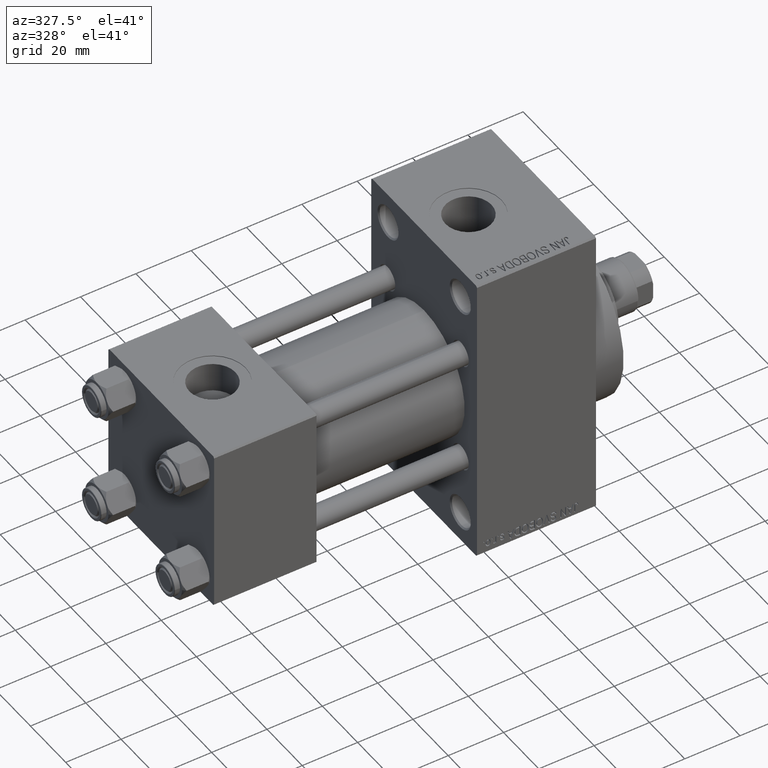
[diagram: clean part render]
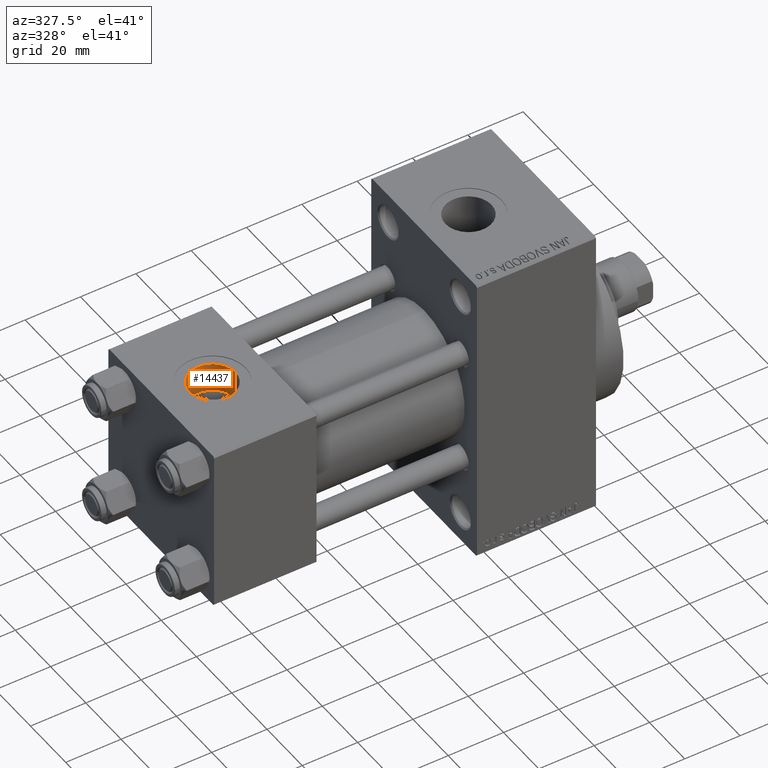
[diagram: same view with one face highlighted and labeled with its STEP entity id]
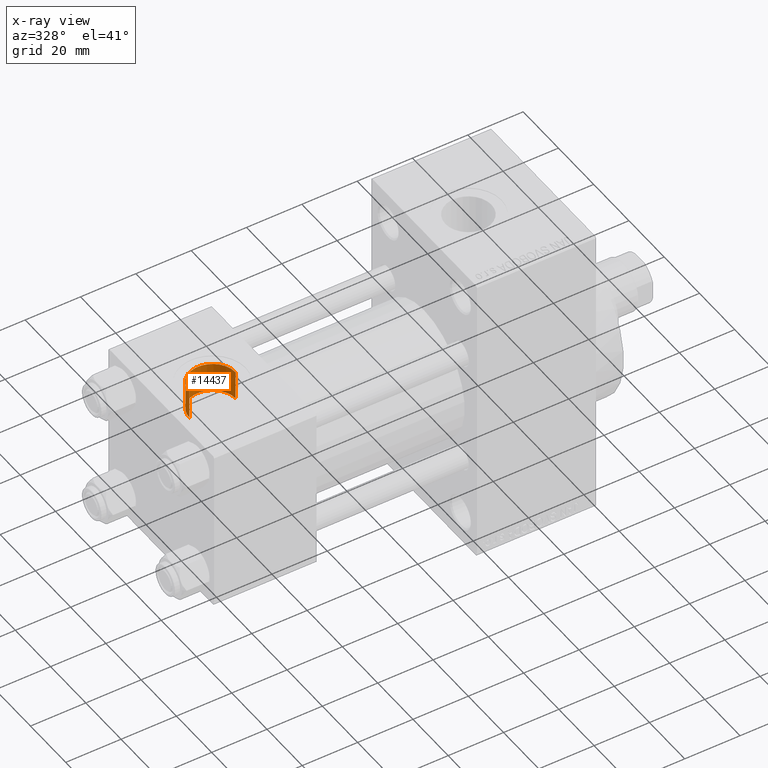
[diagram: x-ray of the same camera — body ghosted, the highlighted face saturated]
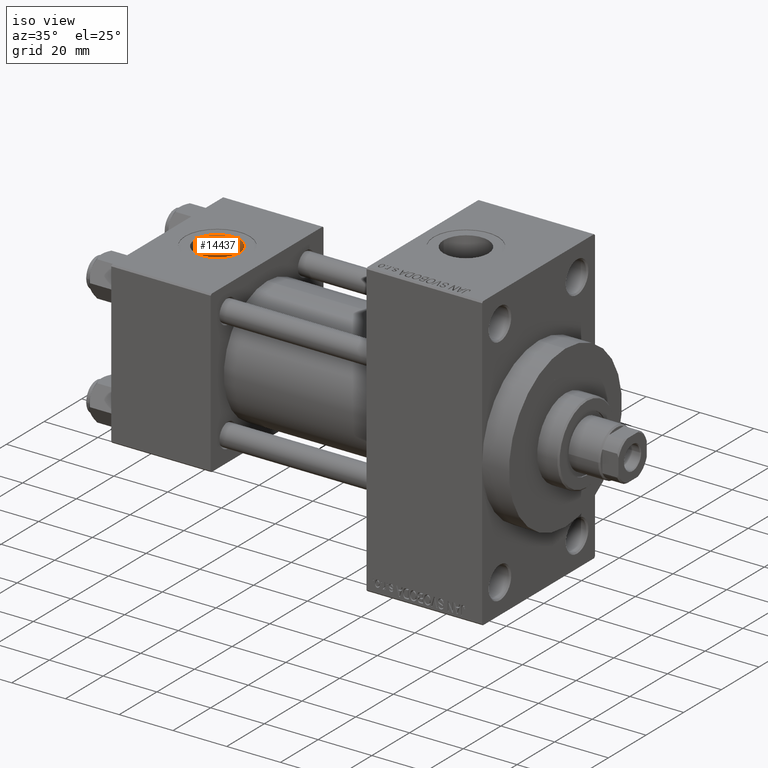
[diagram: same view with one face highlighted and labeled with its STEP entity id]
A machine part, auxiliary view. The second image highlights one B-rep face of the part: STEP entity #14437.
The next image is the same camera in x-ray: the body ghosted, the highlighted face saturated — about 0% of this face is hidden behind the body in this view.
A second angle (iso view) of the same face is appended — the face is thin or edge-on in the first view.
In plain terms, the highlighted cylindrical surface (edge-blend (fillet) strip) has radius 8.33 mm, axis along (0, 0, 1).
Its self-contained STEP definition (entity closure, byte-faithful):
#375 = CARTESIAN_POINT ( 'NONE',  ( 26.82999999999999829, -3.469446951953614978E-15, 29.79999999999999716 ) ) ;
#1020 = EDGE_CURVE ( 'NONE', #20425, #38154, #27832, .T. ) ;
#2878 = DIRECTION ( 'NONE',  ( -0.000000000000000000, -0.000000000000000000, 1.000000000000000000 ) ) ;
#4464 = ORIENTED_EDGE ( 'NONE', *, *, #25943, .F. ) ;
#4608 = DIRECTION ( 'NONE',  ( 0.000000000000000000, 0.000000000000000000, 1.000000000000000000 ) ) ;
#4905 = ORIENTED_EDGE ( 'NONE', *, *, #16477, .F. ) ;
#7416 = FACE_OUTER_BOUND ( 'NONE', #33076, .T. ) ;
#12132 = CARTESIAN_POINT ( 'NONE',  ( 26.82999999999999829, -3.469446951953614978E-15, 19.19999999999999574 ) ) ;
#12221 = DIRECTION ( 'NONE',  ( 1.000000000000000000, 0.000000000000000000, 0.000000000000000000 ) ) ;
#12962 = CARTESIAN_POINT ( 'NONE',  ( 18.50000000000000000, -3.469446951953614978E-15, 19.19999999999999574 ) ) ;
#13116 = CARTESIAN_POINT ( 'NONE',  ( 10.16999999999999638, -2.449316168263869821E-15, 19.19999999999999574 ) ) ;
#14437 = ADVANCED_FACE ( 'NONE', ( #7416 ), #39649, .F. ) ;
#16297 = DIRECTION ( 'NONE',  ( 0.000000000000000000, 0.000000000000000000, 1.000000000000000000 ) ) ;
#16477 = EDGE_CURVE ( 'NONE', #36711, #38154, #34610, .T. ) ;
#20425 = VERTEX_POINT ( 'NONE', #375 ) ;
#21744 = DIRECTION ( 'NONE',  ( 1.000000000000000000, 0.000000000000000000, 0.000000000000000000 ) ) ;
#22532 = CARTESIAN_POINT ( 'NONE',  ( 18.50000000000000000, -3.469446951953614978E-15, 29.79999999999999716 ) ) ;
#24045 = AXIS2_PLACEMENT_3D ( 'NONE', #22532, #4608, #12221 ) ;
#24972 = CARTESIAN_POINT ( 'NONE',  ( 10.16999999999999638, -2.449316168263869821E-15, 29.79999999999999716 ) ) ;
#25943 = EDGE_CURVE ( 'NONE', #37102, #36711, #32429, .T. ) ;
#26720 = DIRECTION ( 'NONE',  ( -0.000000000000000000, -0.000000000000000000, 1.000000000000000000 ) ) ;
#27832 = CIRCLE ( 'NONE', #24045, 8.330000000000000071 ) ;
#28677 = CARTESIAN_POINT ( 'NONE',  ( 18.50000000000000000, -3.469446951953614978E-15, 19.19999999999999574 ) ) ;
#29435 = VECTOR ( 'NONE', #26720, 1000.000000000000000 ) ;
#29831 = CARTESIAN_POINT ( 'NONE',  ( 26.82999999999999829, -3.469446951953614978E-15, 19.19999999999999574 ) ) ;
#30136 = AXIS2_PLACEMENT_3D ( 'NONE', #12962, #16297, #37352 ) ;
#30196 = EDGE_CURVE ( 'NONE', #37102, #20425, #33654, .T. ) ;
#30508 = VECTOR ( 'NONE', #31028, 1000.000000000000000 ) ;
#31028 = DIRECTION ( 'NONE',  ( -0.000000000000000000, -0.000000000000000000, 1.000000000000000000 ) ) ;
#32429 = CIRCLE ( 'NONE', #30136, 8.330000000000000071 ) ;
#33076 = EDGE_LOOP ( 'NONE', ( #4905, #4464, #39519, #46026 ) ) ;
#33654 = LINE ( 'NONE', #12132, #29435 ) ;
#34610 = LINE ( 'NONE', #13116, #30508 ) ;
#36711 = VERTEX_POINT ( 'NONE', #45492 ) ;
#37102 = VERTEX_POINT ( 'NONE', #29831 ) ;
#37352 = DIRECTION ( 'NONE',  ( 1.000000000000000000, 0.000000000000000000, 0.000000000000000000 ) ) ;
#38154 = VERTEX_POINT ( 'NONE', #24972 ) ;
#39519 = ORIENTED_EDGE ( 'NONE', *, *, #30196, .T. ) ;
#39649 = CYLINDRICAL_SURFACE ( 'NONE', #40341, 8.330000000000000071 ) ;
#40341 = AXIS2_PLACEMENT_3D ( 'NONE', #28677, #2878, #21744 ) ;
#45492 = CARTESIAN_POINT ( 'NONE',  ( 10.16999999999999638, -2.449316168263869821E-15, 19.19999999999999574 ) ) ;
#46026 = ORIENTED_EDGE ( 'NONE', *, *, #1020, .T. ) ;